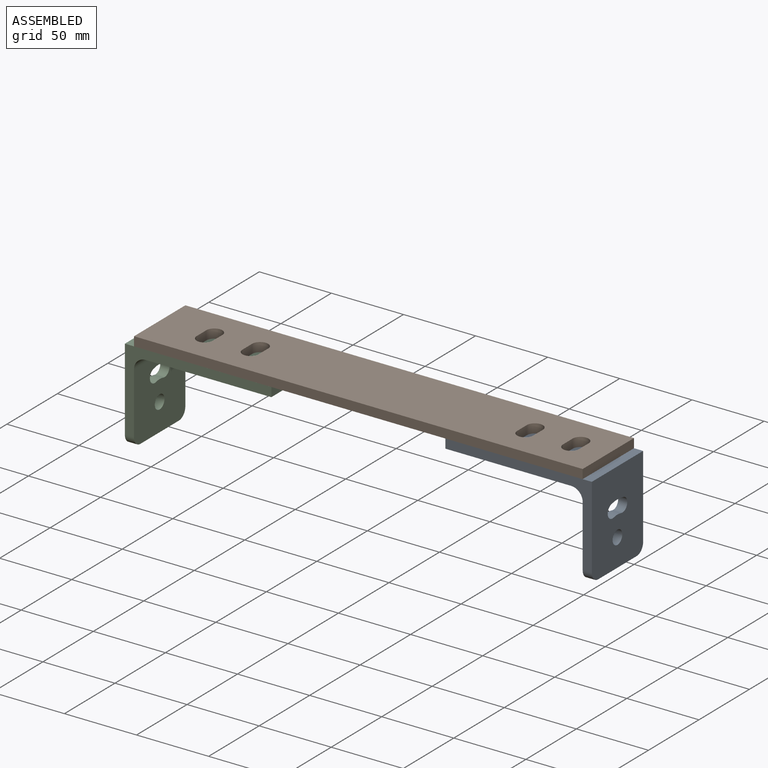
[diagram: assembled view]
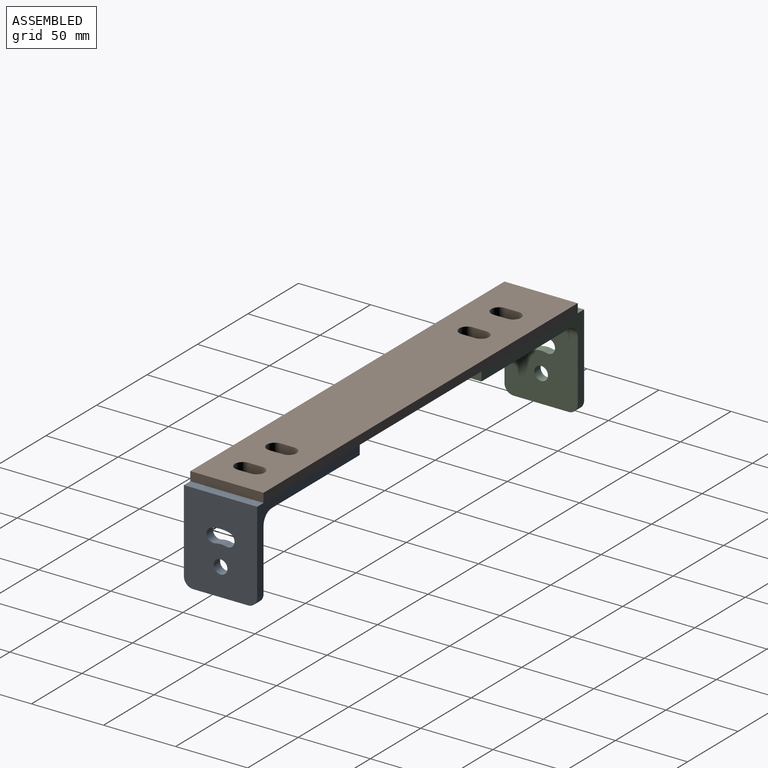
[diagram: assembled view, second angle]
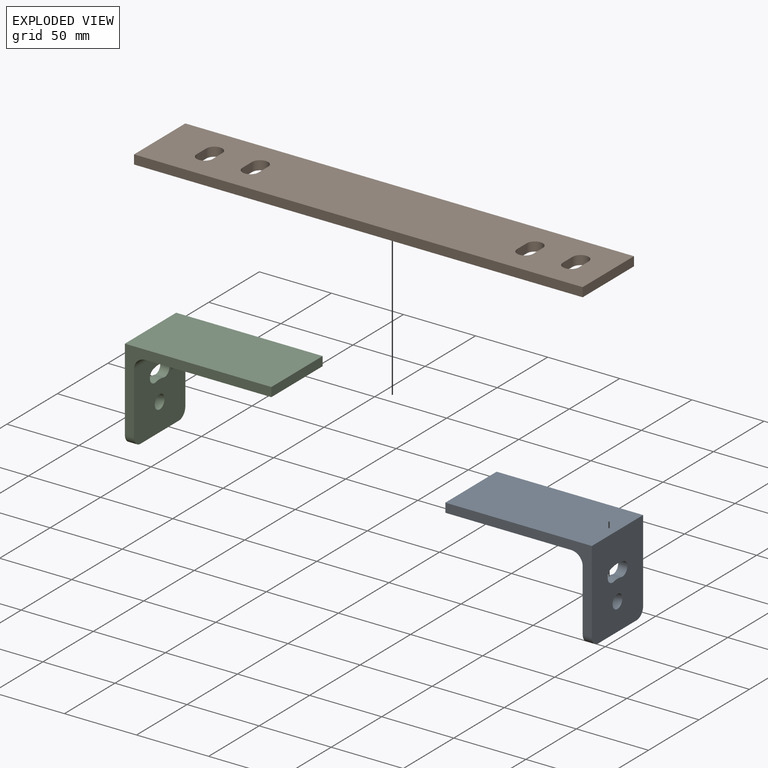
[diagram: exploded view]
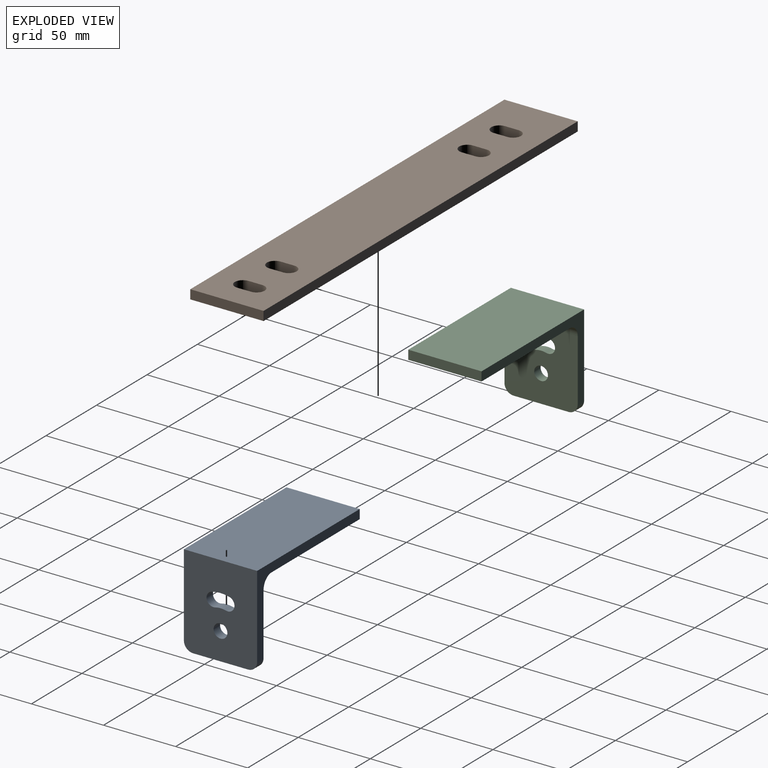
[diagram: exploded view, second angle]
ASSEMBLY  parts=3 mates=2
PART A: 16 faces, bbox 101.6x50.8x63.5 mm
  f0: plane 50.8x49.15mm, normal (1,0,0), area 2242mm2, adj f1,f6,f7,f8,f9,f10,f11,f12
  f1: plane 38.1x6.35mm, normal (0,0,1), area 241.9mm2, adj f0,f2,f14,f15
  f2: plane 63.5x50.8mm, normal (-1,0,0), area 2971mm2, adj f1,f3,f7,f8,f9,f10,f11,f12
  f3: plane 101.6x50.8mm, normal (0,0,-1), area 5161.3mm2, adj f2,f4,f7,f8
  f4: plane 50.8x6.35mm, normal (1,0,0), area 322.6mm2, adj f3,f5,f7,f8
  f5: plane 87.25x50.8mm, normal (0,0,1), area 4432.3mm2, adj f4,f6,f7,f8
  f6: cylinder r=8mm len=50.8mm, axis (0,1,0), area 638.4mm2, adj f0,f5,f7,f8
  f7: plane 101.6x57.15mm, normal (0,-1,0), area 981.5mm2, adj f0,f2,f3,f4,f5,f6,f15
  f8: plane 101.6x57.15mm, normal (0,1,0), area 981.5mm2, adj f0,f2,f3,f4,f5,f6,f14
  f9: cylinder r=4.76mm len=9.36mm, axis (-1,0,0), area 95mm2, adj f0,f2,f10,f11
  f10: cylinder r=14.29mm len=7.4mm, axis (-1,0,0), area 47.5mm2, adj f0,f2,f9,f12
  f11: cylinder r=23.81mm len=12.33mm, axis (-1,0,0), area 79.2mm2, adj f0,f2,f9,f12
  f12: cylinder r=4.76mm len=9.36mm, axis (-1,0,0), area 95mm2, adj f0,f2,f10,f11
  f13: cylinder r=4.76mm len=9.53mm, axis (-1,0,0), area 190mm2, adj f0,f2
  f14: cylinder r=6.35mm len=6.35mm, axis (-1,0,0), area 63.3mm2, adj f0,f1,f2,f8
  f15: cylinder r=6.35mm len=6.35mm, axis (1,0,0), area 63.3mm2, adj f0,f1,f2,f7
PART B: 22 faces, bbox 311.2x50.8x6.4 mm
  f0: plane 311.15x6.35mm, normal (0,1,0), area 1975.8mm2, adj f1,f3,f4,f5
  f1: plane 50.8x6.35mm, normal (1,0,0), area 322.6mm2, adj f0,f2,f4,f5
  f2: plane 311.15x6.35mm, normal (0,-1,0), area 1975.8mm2, adj f1,f3,f4,f5
  f3: plane 50.8x6.35mm, normal (-1,0,0), area 322.6mm2, adj f0,f2,f4,f5
  f4: plane 311.15x50.8mm, normal (0,0,-1), area 14995.1mm2, adj f0,f1,f2,f3,f6,f7,f8,f9
  f5: plane 311.15x50.8mm, normal (0,0,1), area 14995.1mm2, adj f0,f1,f2,f3,f6,f7,f8,f9
  f6: cylinder r=5.56mm len=11.11mm, axis (0,0,1), area 110.8mm2, adj f4,f5,f7,f9
  f7: plane 9.53x6.35mm, normal (1,0,0), area 60.5mm2, adj f4,f5,f6,f8
  f8: cylinder r=5.56mm len=11.11mm, axis (0,0,1), area 110.8mm2, adj f4,f5,f7,f9
  f9: plane 9.53x6.35mm, normal (-1,0,0), area 60.5mm2, adj f4,f5,f6,f8
  f10: cylinder r=5.56mm len=11.11mm, axis (0,0,1), area 110.8mm2, adj f4,f5,f11,f13
  f11: plane 9.53x6.35mm, normal (1,0,0), area 60.5mm2, adj f4,f5,f10,f12
  f12: cylinder r=5.56mm len=11.11mm, axis (0,0,1), area 110.8mm2, adj f4,f5,f11,f13
  f13: plane 9.53x6.35mm, normal (-1,0,0), area 60.5mm2, adj f4,f5,f10,f12
  f14: cylinder r=5.56mm len=11.11mm, axis (0,0,1), area 110.8mm2, adj f4,f5,f15,f17
  f15: plane 9.53x6.35mm, normal (1,0,0), area 60.5mm2, adj f4,f5,f14,f16
  f16: cylinder r=5.56mm len=11.11mm, axis (0,0,1), area 110.8mm2, adj f4,f5,f15,f17
  f17: plane 9.53x6.35mm, normal (-1,0,0), area 60.5mm2, adj f4,f5,f14,f16
  f18: cylinder r=5.56mm len=11.11mm, axis (0,0,1), area 110.8mm2, adj f4,f5,f19,f21
  f19: plane 9.53x6.35mm, normal (1,0,0), area 60.5mm2, adj f4,f5,f18,f20
  f20: cylinder r=5.56mm len=11.11mm, axis (0,0,1), area 110.8mm2, adj f4,f5,f19,f21
  f21: plane 9.53x6.35mm, normal (-1,0,0), area 60.5mm2, adj f4,f5,f18,f20
PART C: 16 faces, bbox 101.6x50.8x63.5 mm
  f0: plane 38.1x6.35mm, normal (0,0,1), area 241.9mm2, adj f1,f6,f14,f15
  f1: plane 50.8x49.15mm, normal (-1,0,0), area 2242mm2, adj f0,f2,f7,f8,f9,f10,f11,f12
  f2: cylinder r=8mm len=50.8mm, axis (0,1,0), area 638.4mm2, adj f1,f3,f7,f8
  f3: plane 87.25x50.8mm, normal (0,0,1), area 4432.3mm2, adj f2,f4,f7,f8
  f4: plane 50.8x6.35mm, normal (-1,0,0), area 322.6mm2, adj f3,f5,f7,f8
  f5: plane 101.6x50.8mm, normal (0,0,-1), area 5161.3mm2, adj f4,f6,f7,f8
  f6: plane 63.5x50.8mm, normal (1,0,0), area 2971mm2, adj f0,f5,f7,f8,f9,f10,f11,f12
  f7: plane 101.6x57.15mm, normal (0,-1,0), area 981.5mm2, adj f1,f2,f3,f4,f5,f6,f15
  f8: plane 101.6x57.15mm, normal (0,1,0), area 981.5mm2, adj f1,f2,f3,f4,f5,f6,f14
  f9: cylinder r=4.76mm len=9.36mm, axis (-1,0,0), area 95mm2, adj f1,f6,f10,f11
  f10: cylinder r=14.29mm len=7.4mm, axis (-1,0,0), area 47.5mm2, adj f1,f6,f9,f12
  f11: cylinder r=23.81mm len=12.33mm, axis (-1,0,0), area 79.2mm2, adj f1,f6,f9,f12
  f12: cylinder r=4.76mm len=9.36mm, axis (-1,0,0), area 95mm2, adj f1,f6,f10,f11
  f13: cylinder r=4.76mm len=9.53mm, axis (-1,0,0), area 190mm2, adj f1,f6
  f14: cylinder r=6.35mm len=6.35mm, axis (-1,0,0), area 63.3mm2, adj f0,f1,f6,f8
  f15: cylinder r=6.35mm len=6.35mm, axis (1,0,0), area 63.3mm2, adj f0,f1,f6,f7
PLACE A rot(axis=(0,1,0),180deg) t=(-648.74,-213.14,514.31)mm
PLACE B rot(axis=(-1,0,0),0deg) t=(-648.74,-213.14,520.66)mm
PLACE C rot(axis=(0,-1,0),180deg) t=(-674.14,-213.14,514.31)mm
MATE fastened B.f4 <-> A.f3  axis (0,0,-1) through (-505.87,-238.54,514.31)mm
MATE fastened C.f5 <-> B.f4  axis (0,0,1) through (-823.37,-238.54,514.31)mm
